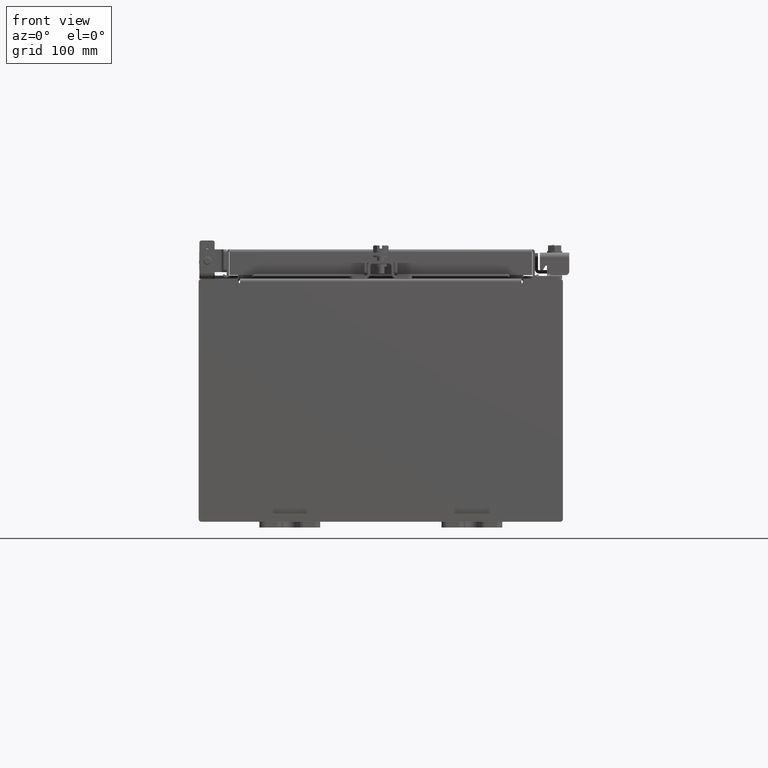
[diagram: clean part render]
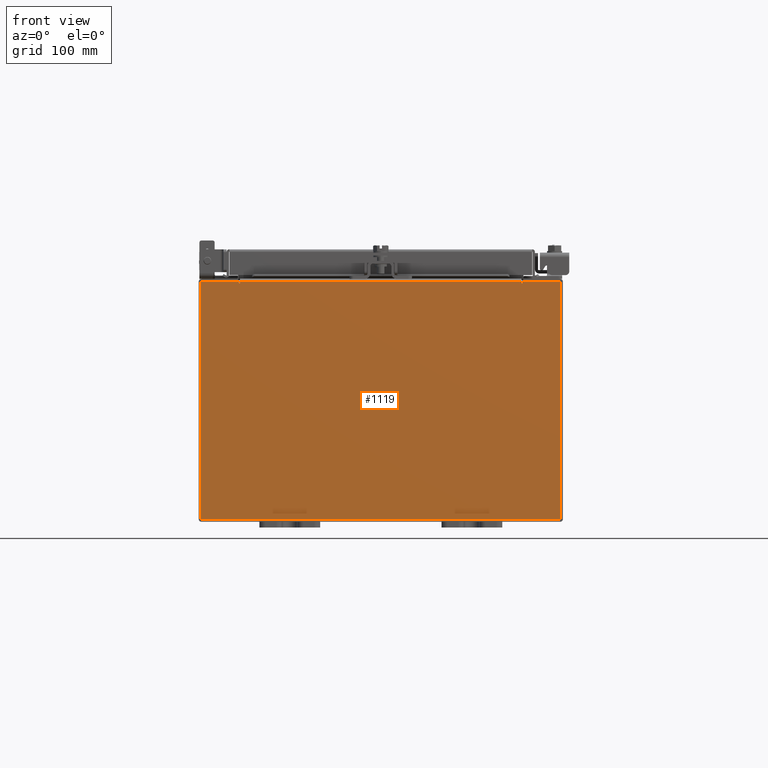
[diagram: same view with one face highlighted and labeled with its STEP entity id]
A machine part, front view. The second image highlights one B-rep face of the part: STEP entity #1119.
In plain terms, the highlighted planar face has unit normal (-0, 1, -0).
Its self-contained STEP definition (entity closure, byte-faithful):
#932 = DIRECTION ( 'NONE',  ( -1.085143195100001200E-014, 0.0000000000000000000, -1.000000000000000000 ) ) ;
#1114 = VECTOR ( 'NONE', #15219, 39.37007874015748100 ) ;
#1119 = ADVANCED_FACE ( 'NONE', ( #11539 ), #3266, .F. ) ;
#1508 = VERTEX_POINT ( 'NONE', #11012 ) ;
#1573 = DIRECTION ( 'NONE',  ( 1.000000000000000000, 0.0000000000000000000, 0.0000000000000000000 ) ) ;
#1675 = DIRECTION ( 'NONE',  ( -0.0000000000000000000, -0.0000000000000000000, 1.000000000000000000 ) ) ;
#1929 = LINE ( 'NONE', #18583, #18565 ) ;
#1946 = AXIS2_PLACEMENT_3D ( 'NONE', #18030, #8365, #19639 ) ;
#2425 = ORIENTED_EDGE ( 'NONE', *, *, #5192, .T. ) ;
#2459 = LINE ( 'NONE', #4354, #15306 ) ;
#2746 = CARTESIAN_POINT ( 'NONE',  ( 4.674550000000002600, 0.0000000000000000000, 3.874949999999999200 ) ) ;
#3045 = VERTEX_POINT ( 'NONE', #12230 ) ;
#3124 = CIRCLE ( 'NONE', #14999, 0.01867500000000003900 ) ;
#3159 = VECTOR ( 'NONE', #9853, 39.37007874015748100 ) ;
#3161 = CARTESIAN_POINT ( 'NONE',  ( -5.925299999999998200, 0.0000000000000000000, 3.925299999999999100 ) ) ;
#3266 = PLANE ( 'NONE',  #11102 ) ;
#3557 = ORIENTED_EDGE ( 'NONE', *, *, #4873, .T. ) ;
#3836 = ORIENTED_EDGE ( 'NONE', *, *, #4238, .F. ) ;
#3943 = CARTESIAN_POINT ( 'NONE',  ( -5.925299999999998200, 0.0000000000000000000, 3.925299999999999100 ) ) ;
#4238 = EDGE_CURVE ( 'NONE', #1508, #16346, #2459, .T. ) ;
#4354 = CARTESIAN_POINT ( 'NONE',  ( 4.637200000000002700, 0.0000000000000000000, 0.0000000000000000000 ) ) ;
#4596 = VERTEX_POINT ( 'NONE', #9831 ) ;
#4633 = EDGE_CURVE ( 'NONE', #15348, #1508, #5958, .T. ) ;
#4873 = EDGE_CURVE ( 'NONE', #8829, #4596, #6694, .T. ) ;
#4908 = EDGE_CURVE ( 'NONE', #3045, #15348, #1929, .T. ) ;
#5036 = DIRECTION ( 'NONE',  ( 1.000000000000000000, 0.0000000000000000000, 0.0000000000000000000 ) ) ;
#5192 = EDGE_CURVE ( 'NONE', #17904, #16346, #5940, .T. ) ;
#5368 = CARTESIAN_POINT ( 'NONE',  ( -4.674549999999998200, 0.0000000000000000000, 3.925299999999999100 ) ) ;
#5743 = DIRECTION ( 'NONE',  ( 0.0000000000000000000, -1.000000000000000000, 0.0000000000000000000 ) ) ;
#5940 = LINE ( 'NONE', #11458, #18298 ) ;
#5958 = CIRCLE ( 'NONE', #1946, 0.01867500000000003900 ) ;
#5974 = CARTESIAN_POINT ( 'NONE',  ( -5.925299999999998200, 0.0000000000000000000, 3.925299999999999100 ) ) ;
#6001 = EDGE_CURVE ( 'NONE', #15843, #19753, #3124, .T. ) ;
#6107 = LINE ( 'NONE', #3161, #18471 ) ;
#6553 = EDGE_CURVE ( 'NONE', #19753, #9794, #19730, .T. ) ;
#6694 = LINE ( 'NONE', #15272, #19066 ) ;
#6865 = VECTOR ( 'NONE', #7182, 39.37007874015748100 ) ;
#7182 = DIRECTION ( 'NONE',  ( 0.0000000000000000000, 0.0000000000000000000, 1.000000000000000000 ) ) ;
#7340 = DIRECTION ( 'NONE',  ( 0.0000000000000000000, -0.0000000000000000000, -1.000000000000000000 ) ) ;
#7980 = CARTESIAN_POINT ( 'NONE',  ( -5.925299999999998200, 0.0000000000000000000, -3.925300000000000500 ) ) ;
#8365 = DIRECTION ( 'NONE',  ( -0.0000000000000000000, 1.000000000000000000, -0.0000000000000000000 ) ) ;
#8829 = VERTEX_POINT ( 'NONE', #15673 ) ;
#8965 = DIRECTION ( 'NONE',  ( -0.0000000000000000000, 1.000000000000000000, -0.0000000000000000000 ) ) ;
#9664 = CARTESIAN_POINT ( 'NONE',  ( -5.925299999999998200, 0.0000000000000000000, 3.925299999999999100 ) ) ;
#9794 = VERTEX_POINT ( 'NONE', #5368 ) ;
#9831 = CARTESIAN_POINT ( 'NONE',  ( 5.925300000000002700, 0.0000000000000000000, -3.925300000000000500 ) ) ;
#9853 = DIRECTION ( 'NONE',  ( 0.0000000000000000000, 0.0000000000000000000, -1.000000000000000000 ) ) ;
#10921 = CARTESIAN_POINT ( 'NONE',  ( -5.925299999999998200, 0.0000000000000000000, -3.925300000000000500 ) ) ;
#11012 = CARTESIAN_POINT ( 'NONE',  ( 4.637200000000002700, 0.0000000000000000000, 3.874949999999999200 ) ) ;
#11102 = AXIS2_PLACEMENT_3D ( 'NONE', #13903, #5743, #7340 ) ;
#11113 = VECTOR ( 'NONE', #17659, 39.37007874015748100 ) ;
#11458 = CARTESIAN_POINT ( 'NONE',  ( -4.637199999999998200, -1.707404996040164500E-016, 3.912299999999999200 ) ) ;
#11539 = FACE_OUTER_BOUND ( 'NONE', #19292, .T. ) ;
#12230 = CARTESIAN_POINT ( 'NONE',  ( 4.674550000000001800, 0.0000000000000000000, 3.925299999999999100 ) ) ;
#12366 = ORIENTED_EDGE ( 'NONE', *, *, #14905, .T. ) ;
#12574 = CARTESIAN_POINT ( 'NONE',  ( -4.637199999999998200, -1.707404996040164500E-016, 3.912299999999999200 ) ) ;
#12745 = ORIENTED_EDGE ( 'NONE', *, *, #16267, .T. ) ;
#12758 = EDGE_CURVE ( 'NONE', #3045, #8829, #6107, .T. ) ;
#13145 = ORIENTED_EDGE ( 'NONE', *, *, #4908, .F. ) ;
#13413 = EDGE_CURVE ( 'NONE', #15364, #9794, #18212, .T. ) ;
#13474 = CARTESIAN_POINT ( 'NONE',  ( -4.637199999999998200, -0.0000000000000000000, 3.874949999999999200 ) ) ;
#13625 = DIRECTION ( 'NONE',  ( 0.0000000000000000000, 0.0000000000000000000, -1.000000000000000000 ) ) ;
#13903 = CARTESIAN_POINT ( 'NONE',  ( 0.0000000000000000000, 0.0000000000000000000, 0.0000000000000000000 ) ) ;
#14380 = ORIENTED_EDGE ( 'NONE', *, *, #4633, .F. ) ;
#14847 = LINE ( 'NONE', #9664, #18660 ) ;
#14905 = EDGE_CURVE ( 'NONE', #4596, #17341, #19668, .T. ) ;
#14914 = ORIENTED_EDGE ( 'NONE', *, *, #12758, .T. ) ;
#14999 = AXIS2_PLACEMENT_3D ( 'NONE', #18649, #8965, #20236 ) ;
#15219 = DIRECTION ( 'NONE',  ( 1.000000000000000000, 0.0000000000000000000, 0.0000000000000000000 ) ) ;
#15272 = CARTESIAN_POINT ( 'NONE',  ( 5.925300000000002700, 0.0000000000000000000, 3.925299999999999100 ) ) ;
#15306 = VECTOR ( 'NONE', #15664, 39.37007874015748100 ) ;
#15348 = VERTEX_POINT ( 'NONE', #2746 ) ;
#15364 = VERTEX_POINT ( 'NONE', #5974 ) ;
#15617 = ORIENTED_EDGE ( 'NONE', *, *, #6001, .F. ) ;
#15664 = DIRECTION ( 'NONE',  ( 0.0000000000000000000, 0.0000000000000000000, 1.000000000000000000 ) ) ;
#15673 = CARTESIAN_POINT ( 'NONE',  ( 5.925300000000002700, 0.0000000000000000000, 3.925299999999999100 ) ) ;
#15843 = VERTEX_POINT ( 'NONE', #13474 ) ;
#16267 = EDGE_CURVE ( 'NONE', #17341, #15364, #14847, .T. ) ;
#16320 = CARTESIAN_POINT ( 'NONE',  ( -4.637199999999998200, -0.0000000000000000000, 0.0000000000000000000 ) ) ;
#16346 = VERTEX_POINT ( 'NONE', #16471 ) ;
#16471 = CARTESIAN_POINT ( 'NONE',  ( 4.637200000000002700, 0.0000000000000000000, 3.912299999999999200 ) ) ;
#16897 = CARTESIAN_POINT ( 'NONE',  ( -4.674549999999998200, -0.0000000000000000000, 0.0000000000000000000 ) ) ;
#17321 = ORIENTED_EDGE ( 'NONE', *, *, #13413, .T. ) ;
#17341 = VERTEX_POINT ( 'NONE', #10921 ) ;
#17653 = ORIENTED_EDGE ( 'NONE', *, *, #6553, .F. ) ;
#17659 = DIRECTION ( 'NONE',  ( -1.000000000000000000, -0.0000000000000000000, -0.0000000000000000000 ) ) ;
#17904 = VERTEX_POINT ( 'NONE', #12574 ) ;
#18030 = CARTESIAN_POINT ( 'NONE',  ( 4.655875000000002700, 0.0000000000000000000, 3.874949999999999200 ) ) ;
#18212 = LINE ( 'NONE', #3943, #1114 ) ;
#18298 = VECTOR ( 'NONE', #5036, 39.37007874015748100 ) ;
#18329 = ORIENTED_EDGE ( 'NONE', *, *, #19221, .F. ) ;
#18471 = VECTOR ( 'NONE', #1573, 39.37007874015748100 ) ;
#18565 = VECTOR ( 'NONE', #932, 39.37007874015748100 ) ;
#18583 = CARTESIAN_POINT ( 'NONE',  ( 4.674549999999960900, -0.0000000000000000000, -5.072556122654668400E-014 ) ) ;
#18649 = CARTESIAN_POINT ( 'NONE',  ( -4.655874999999998200, 0.0000000000000000000, 3.874949999999999200 ) ) ;
#18660 = VECTOR ( 'NONE', #1675, 39.37007874015748100 ) ;
#19066 = VECTOR ( 'NONE', #13625, 39.37007874015748100 ) ;
#19171 = CARTESIAN_POINT ( 'NONE',  ( -4.674549999999998200, 0.0000000000000000000, 3.874949999999999200 ) ) ;
#19221 = EDGE_CURVE ( 'NONE', #17904, #15843, #20286, .T. ) ;
#19292 = EDGE_LOOP ( 'NONE', ( #17653, #15617, #18329, #2425, #3836, #14380, #13145, #14914, #3557, #12366, #12745, #17321 ) ) ;
#19639 = DIRECTION ( 'NONE',  ( 0.0000000000000000000, 0.0000000000000000000, -1.000000000000000000 ) ) ;
#19668 = LINE ( 'NONE', #7980, #11113 ) ;
#19730 = LINE ( 'NONE', #16897, #6865 ) ;
#19753 = VERTEX_POINT ( 'NONE', #19171 ) ;
#20236 = DIRECTION ( 'NONE',  ( 0.0000000000000000000, 0.0000000000000000000, -1.000000000000000000 ) ) ;
#20286 = LINE ( 'NONE', #16320, #3159 ) ;